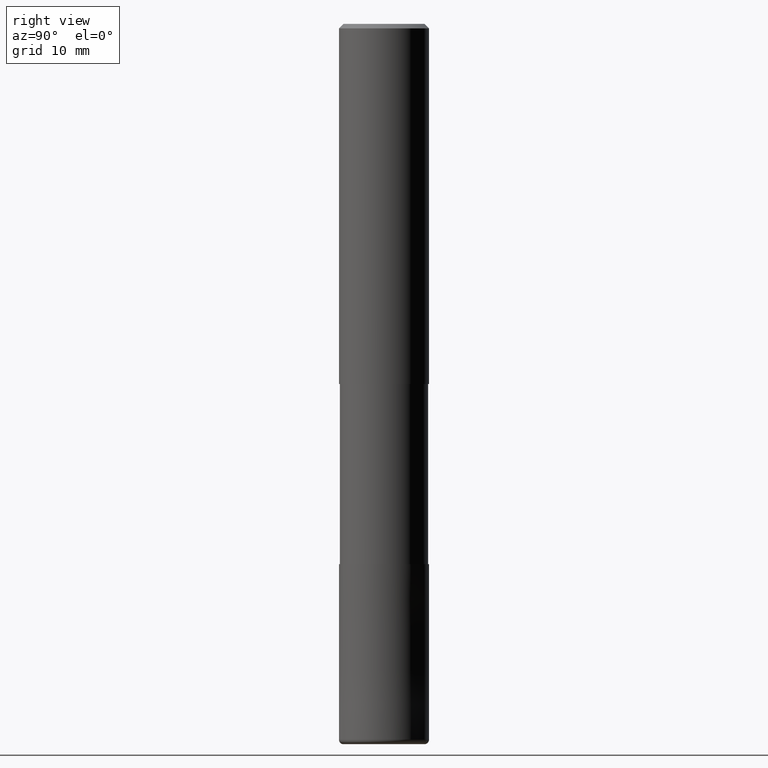
[diagram: clean part render]
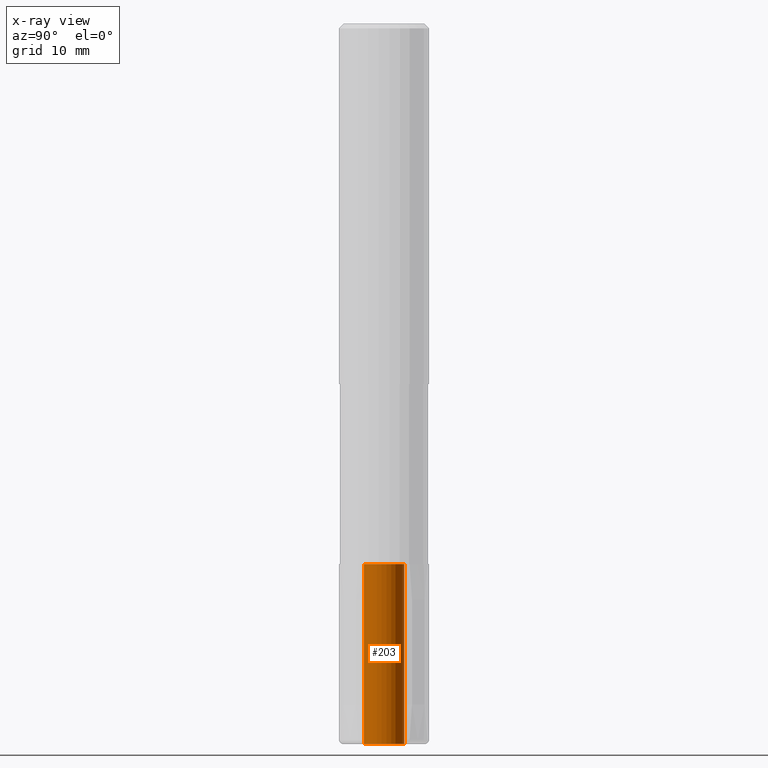
[diagram: x-ray — body ghosted, one internal face saturated and labeled with its STEP entity id]
A machine part, right view, then the same camera in x-ray: the body is ghosted and one INTERNAL B-rep face — a face not visible from any outside direction — is saturated and labeled: STEP entity #203.
In plain terms, the highlighted cylindrical surface (edge-blend (fillet) strip) has radius 2.25 mm, axis along (-0, -0, 1).
Its self-contained STEP definition (entity closure, byte-faithful):
#133=VERTEX_POINT('',#321);
#149=EDGE_CURVE('',#133,#155,#341,.T.);
#155=VERTEX_POINT('',#347);
#181=VERTEX_POINT('',#379);
#183=VERTEX_POINT('',#381);
#203=ADVANCED_FACE('',(#403),#404,.F.);
#237=EDGE_CURVE('',#183,#155,#444,.T.);
#239=EDGE_CURVE('',#181,#183,#446,.T.);
#277=EDGE_CURVE('',#133,#181,#486,.T.);
#321=CARTESIAN_POINT('',(0.0,2.25,-60.0));
#341=CIRCLE('',#552,2.25);
#347=CARTESIAN_POINT('',(2.75536429610035E-016,-2.25,-60.0));
#379=CARTESIAN_POINT('',(0.0,2.25,-80.0));
#381=CARTESIAN_POINT('',(2.75536429610035E-016,-2.25,-80.0));
#403=FACE_OUTER_BOUND('',#625,.T.);
#404=CYLINDRICAL_SURFACE('',#626,2.25);
#444=LINE('',#678,#679);
#446=CIRCLE('',#682,2.25);
#486=LINE('',#735,#736);
#552=AXIS2_PLACEMENT_3D('',#791,#792,#793);
#625=EDGE_LOOP('',(#872,#873,#874,#875));
#626=AXIS2_PLACEMENT_3D('',#876,#877,#878);
#678=CARTESIAN_POINT('',(2.75536429610035E-016,-2.25,-70.0));
#679=VECTOR('',#935,1.0);
#682=AXIS2_PLACEMENT_3D('',#936,#937,#938);
#735=CARTESIAN_POINT('',(-2.75536429610035E-016,2.25,-70.0));
#736=VECTOR('',#975,1.0);
#791=CARTESIAN_POINT('',(0.0,0.0,-60.0));
#792=DIRECTION('',(0.0,0.0,-1.0));
#793=DIRECTION('',(0.0,1.0,0.0));
#872=ORIENTED_EDGE('',*,*,#277,.T.);
#873=ORIENTED_EDGE('',*,*,#239,.T.);
#874=ORIENTED_EDGE('',*,*,#237,.T.);
#875=ORIENTED_EDGE('',*,*,#149,.F.);
#876=CARTESIAN_POINT('',(0.0,0.0,-70.0));
#877=DIRECTION('',(-0.0,-0.0,1.0));
#878=DIRECTION('',(0.0,1.0,0.0));
#935=DIRECTION('',(0.0,-0.0,1.0));
#936=CARTESIAN_POINT('',(0.0,0.0,-80.0));
#937=DIRECTION('',(0.0,0.0,-1.0));
#938=DIRECTION('',(0.0,1.0,0.0));
#975=DIRECTION('',(0.0,-0.0,-1.0));